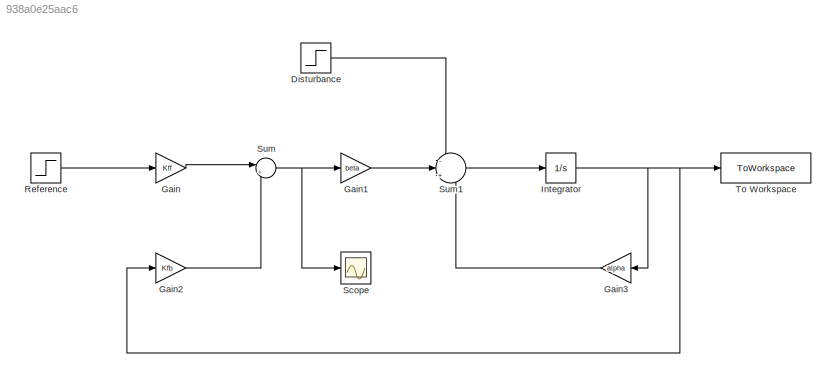
MODEL slx_938a0e25aac6
KIND model
CONFIG AbsTol = auto
CONFIG EnableMultiTasking = off
CONFIG FixedStep = auto
CONFIG MaxStep = auto
CONFIG MinStep = auto
CONFIG RelTol = 1e-3
CONFIG SampleTimeConstraint = Unconstrained
CONFIG SolverName = VariableStepAuto
CONFIG StartTime = 0.0
CONFIG StopTime = 10.0
BLOCK [Step] Disturbance
  SampleTime = 0
  Time = 6
BLOCK [Gain] Gain
  Gain = Kff
BLOCK [Gain] Gain1
  Gain = beta
BLOCK [Gain] Gain2
  Gain = Kfb
BLOCK [Gain] Gain3
  Gain = alpha
BLOCK [Integrator] Integrator
  Ports = [1, 1]
BLOCK [Step] Reference
  SampleTime = 0
BLOCK [Scope] Scope
  Floating = off
  NumInputPorts = 1
  Ports = [1]
  ScopeSpecificationString = Simulink.scopes.TimeScopeBlockCfg('CurrentConfiguration', extmgr.ConfigurationSet(extmgr.Configuration('Core','General UI',true),extmgr.Configuration('Core','Source UI',true),extmgr.Configuration('Sources','WiredSimulink',true),extmgr.Configuration('Visuals','Time Domain',true,'SerializedDisplays',{struct('MinYLimReal','-1.5','MaxYLimReal','3.5','YLabelReal','','MinYLimMag','0.00000','MaxYLimMag',...<+1299ch>
BLOCK [Sum] Sum
  Inputs = |+-
  Ports = [2, 1]
BLOCK [Sum] Sum1
  Inputs = -|+|+
  Ports = [3, 1]
BLOCK [ToWorkspace] To Workspace
  FixptAsFi = on
  MaxDataPoints = inf
  Ports = [1]
  SampleTime = -1
  SaveFormat = Structure With Time
  VariableName = yRocket
LINE Disturbance:1 -> Sum1:1
LINE Gain1:1 -> Sum1:2
LINE Gain2:1 -> Sum:2
LINE Gain3:1 -> Sum1:3
LINE Gain:1 -> Sum:1
NET Integrator:1 -> Gain2:1, Gain3:1, To Workspace:1
LINE Reference:1 -> Gain:1
LINE Sum1:1 -> Integrator:1
NET Sum:1 -> Gain1:1, Scope:1
note: NET lines group one-source signal fan-out (src -> all destinations, sorted); 1:1 wires keep LINE
